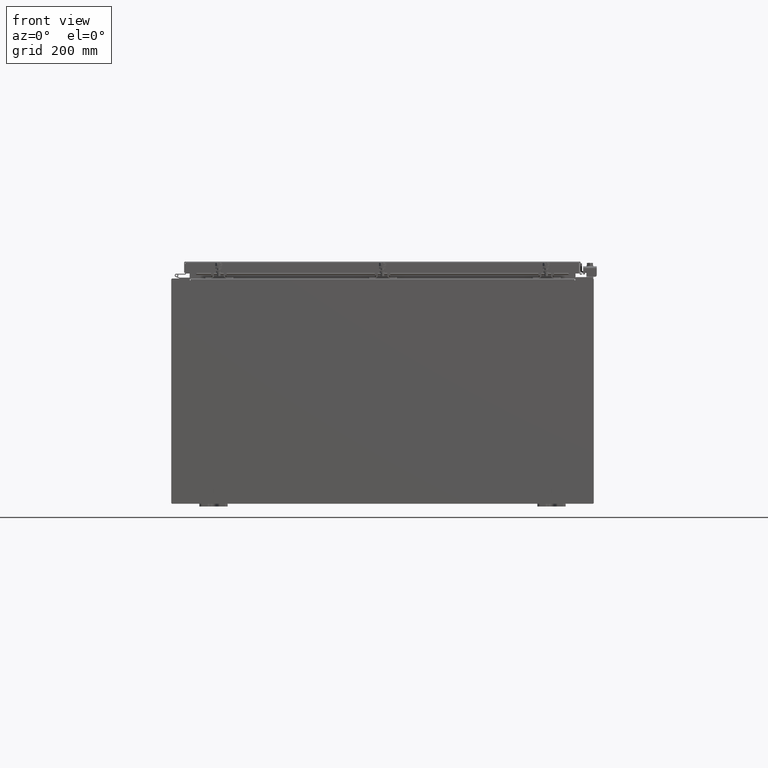
[diagram: clean part render]
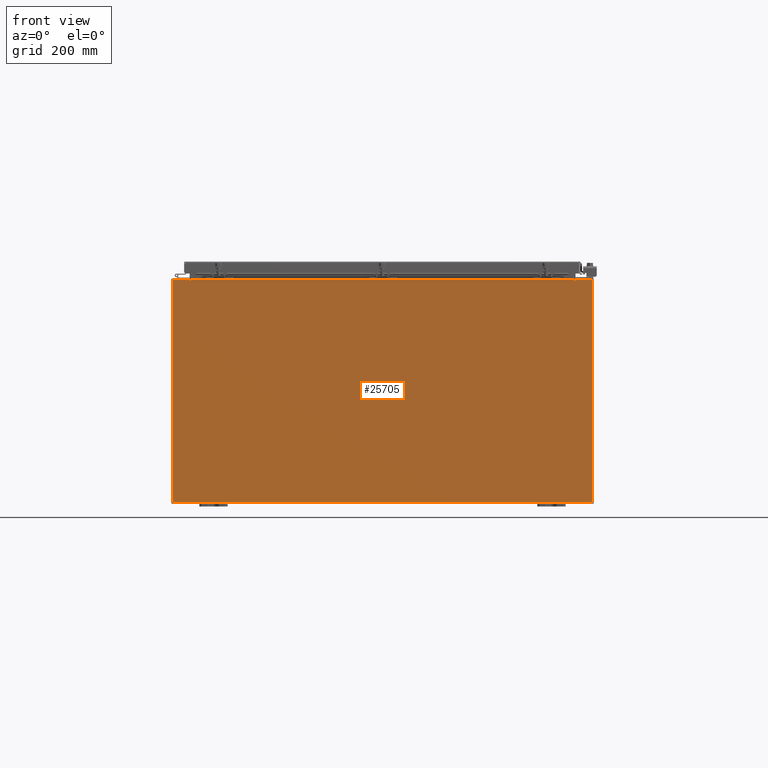
[diagram: same view with one face highlighted and labeled with its STEP entity id]
A machine part, front view. The second image highlights one B-rep face of the part: STEP entity #25705.
In plain terms, the highlighted planar face has unit normal (0, 1, -0).
Its self-contained STEP definition (entity closure, byte-faithful):
#1044 = ORIENTED_EDGE ( 'NONE', *, *, #20439, .F. ) ;
#1153 = LINE ( 'NONE', #43163, #26000 ) ;
#1359 = PLANE ( 'NONE',  #35572 ) ;
#1618 = EDGE_CURVE ( 'NONE', #10319, #11211, #3408, .T. ) ;
#1960 = CARTESIAN_POINT ( 'NONE',  ( -14.92529999999999800, 0.0000000000000000000, 7.925299999999990200 ) ) ;
#3408 = LINE ( 'NONE', #29266, #20342 ) ;
#3864 = CARTESIAN_POINT ( 'NONE',  ( 13.63720000000000400, 0.0000000000000000000, 7.874950000000010800 ) ) ;
#4386 = DIRECTION ( 'NONE',  ( 2.688223102148528000E-016, 1.000000000000000000, -1.677591767810434000E-016 ) ) ;
#4556 = AXIS2_PLACEMENT_3D ( 'NONE', #24652, #4386, #28004 ) ;
#4712 = CARTESIAN_POINT ( 'NONE',  ( 0.0000000000000000000, 0.0000000000000000000, 0.0000000000000000000 ) ) ;
#4773 = ORIENTED_EDGE ( 'NONE', *, *, #42163, .T. ) ;
#4876 = CARTESIAN_POINT ( 'NONE',  ( 13.67455000000000400, 0.0000000000000000000, 7.925300000000009800 ) ) ;
#4912 = LINE ( 'NONE', #42825, #39767 ) ;
#5659 = DIRECTION ( 'NONE',  ( 1.000000000000000000, 2.688223102148527500E-016, 8.326672684688674100E-016 ) ) ;
#5695 = EDGE_CURVE ( 'NONE', #39818, #29211, #40020, .T. ) ;
#5923 = ORIENTED_EDGE ( 'NONE', *, *, #11990, .F. ) ;
#6345 = DIRECTION ( 'NONE',  ( 2.688223102148528000E-016, 1.000000000000000000, -1.677591767810434000E-016 ) ) ;
#7340 = CIRCLE ( 'NONE', #30468, 0.01867499999999949400 ) ;
#8115 = DIRECTION ( 'NONE',  ( -2.688223102148531000E-016, -1.000000000000000000, -1.677591767810432300E-016 ) ) ;
#9051 = CARTESIAN_POINT ( 'NONE',  ( -13.63719999999999800, 0.0000000000000000000, 7.912299999999996600 ) ) ;
#9191 = DIRECTION ( 'NONE',  ( 8.326672684688674100E-016, -1.677591767810434500E-016, 1.000000000000000000 ) ) ;
#10172 = ORIENTED_EDGE ( 'NONE', *, *, #16306, .T. ) ;
#10305 = VERTEX_POINT ( 'NONE', #10382 ) ;
#10319 = VERTEX_POINT ( 'NONE', #34001 ) ;
#10382 = CARTESIAN_POINT ( 'NONE',  ( 14.92530000000000200, 0.0000000000000000000, 7.925300000000009800 ) ) ;
#11211 = VERTEX_POINT ( 'NONE', #12202 ) ;
#11262 = ORIENTED_EDGE ( 'NONE', *, *, #5695, .T. ) ;
#11813 = VERTEX_POINT ( 'NONE', #1960 ) ;
#11990 = EDGE_CURVE ( 'NONE', #12447, #10319, #7340, .T. ) ;
#12059 = EDGE_CURVE ( 'NONE', #11813, #11211, #14229, .T. ) ;
#12202 = CARTESIAN_POINT ( 'NONE',  ( -13.67454999999999500, 0.0000000000000000000, 7.925299999999990200 ) ) ;
#12367 = EDGE_CURVE ( 'NONE', #40821, #27115, #38526, .T. ) ;
#12447 = VERTEX_POINT ( 'NONE', #19533 ) ;
#14229 = LINE ( 'NONE', #43687, #22177 ) ;
#15192 = ORIENTED_EDGE ( 'NONE', *, *, #37243, .F. ) ;
#16306 = EDGE_CURVE ( 'NONE', #10305, #39818, #27543, .T. ) ;
#16329 = CARTESIAN_POINT ( 'NONE',  ( -13.63719999999999600, 0.0000000000000000000, 7.912299999999996600 ) ) ;
#16447 = CARTESIAN_POINT ( 'NONE',  ( 13.63720000000000400, 0.0000000000000000000, 1.092739197465705300E-014 ) ) ;
#16722 = DIRECTION ( 'NONE',  ( 1.000000000000000000, 2.688223102148527500E-016, 7.594533834906285800E-016 ) ) ;
#17777 = LINE ( 'NONE', #16447, #33647 ) ;
#17946 = VERTEX_POINT ( 'NONE', #3864 ) ;
#18433 = DIRECTION ( 'NONE',  ( 1.000000000000000000, 2.688223102148527500E-016, 7.594533834906285800E-016 ) ) ;
#19113 = VECTOR ( 'NONE', #18433, 39.37007874015748100 ) ;
#19533 = CARTESIAN_POINT ( 'NONE',  ( -13.63719999999999600, 0.0000000000000000000, 7.874949999999988600 ) ) ;
#20015 = CARTESIAN_POINT ( 'NONE',  ( -14.92529999999999800, 0.0000000000000000000, -7.925300000000010700 ) ) ;
#20124 = ORIENTED_EDGE ( 'NONE', *, *, #41306, .T. ) ;
#20342 = VECTOR ( 'NONE', #32647, 39.37007874015748100 ) ;
#20439 = EDGE_CURVE ( 'NONE', #40821, #12447, #30106, .T. ) ;
#20552 = VECTOR ( 'NONE', #5659, 39.37007874015748100 ) ;
#21010 = VECTOR ( 'NONE', #43613, 39.37007874015748100 ) ;
#21102 = VECTOR ( 'NONE', #28445, 39.37007874015748100 ) ;
#22177 = VECTOR ( 'NONE', #16722, 39.37007874015748100 ) ;
#22958 = ORIENTED_EDGE ( 'NONE', *, *, #42946, .F. ) ;
#22984 = DIRECTION ( 'NONE',  ( -4.423839507247080400E-014, 1.677591767810317700E-016, -1.000000000000000000 ) ) ;
#23930 = DIRECTION ( 'NONE',  ( -8.326672684688680000E-016, 1.677591767810434300E-016, -1.000000000000000000 ) ) ;
#24652 = CARTESIAN_POINT ( 'NONE',  ( 13.65587500000000200, 0.0000000000000000000, 7.874950000000010800 ) ) ;
#25664 = ORIENTED_EDGE ( 'NONE', *, *, #27086, .F. ) ;
#25705 = ADVANCED_FACE ( 'NONE', ( #27449 ), #1359, .F. ) ;
#26000 = VECTOR ( 'NONE', #22984, 39.37007874015748100 ) ;
#26613 = CARTESIAN_POINT ( 'NONE',  ( -13.65587499999999600, 0.0000000000000000000, 7.874949999999988600 ) ) ;
#26644 = CARTESIAN_POINT ( 'NONE',  ( 13.63720000000000400, 0.0000000000000000000, 7.912300000000011700 ) ) ;
#27024 = LINE ( 'NONE', #38660, #19113 ) ;
#27086 = EDGE_CURVE ( 'NONE', #17946, #27115, #17777, .T. ) ;
#27115 = VERTEX_POINT ( 'NONE', #26644 ) ;
#27182 = CIRCLE ( 'NONE', #4556, 0.01867499999999949400 ) ;
#27449 = FACE_OUTER_BOUND ( 'NONE', #41150, .T. ) ;
#27543 = LINE ( 'NONE', #30580, #43381 ) ;
#28004 = DIRECTION ( 'NONE',  ( 0.0000000000000000000, 1.677591767810434500E-016, -1.000000000000000000 ) ) ;
#28018 = ORIENTED_EDGE ( 'NONE', *, *, #12367, .T. ) ;
#28445 = DIRECTION ( 'NONE',  ( -8.326672684688674100E-016, 1.677591767810434500E-016, -1.000000000000000000 ) ) ;
#28817 = CARTESIAN_POINT ( 'NONE',  ( 13.67455000000000200, 0.0000000000000000000, 7.874950000000010800 ) ) ;
#29050 = ORIENTED_EDGE ( 'NONE', *, *, #1618, .F. ) ;
#29211 = VERTEX_POINT ( 'NONE', #39355 ) ;
#29266 = CARTESIAN_POINT ( 'NONE',  ( -13.67454999999999500, 0.0000000000000000000, -1.092739197465705300E-014 ) ) ;
#29762 = VERTEX_POINT ( 'NONE', #28817 ) ;
#29997 = DIRECTION ( 'NONE',  ( 0.0000000000000000000, 1.677591767810434500E-016, -1.000000000000000000 ) ) ;
#30106 = LINE ( 'NONE', #41887, #21102 ) ;
#30468 = AXIS2_PLACEMENT_3D ( 'NONE', #26613, #6345, #29997 ) ;
#30580 = CARTESIAN_POINT ( 'NONE',  ( 14.92530000000000200, 0.0000000000000000000, 7.925300000000009800 ) ) ;
#31747 = DIRECTION ( 'NONE',  ( -8.326672684688674100E-016, 1.677591767810434500E-016, -1.000000000000000000 ) ) ;
#32647 = DIRECTION ( 'NONE',  ( 8.326672684688674100E-016, -1.677591767810434500E-016, 1.000000000000000000 ) ) ;
#33647 = VECTOR ( 'NONE', #40038, 39.37007874015748100 ) ;
#34001 = CARTESIAN_POINT ( 'NONE',  ( -13.67454999999999500, 0.0000000000000000000, 7.874949999999988600 ) ) ;
#35572 = AXIS2_PLACEMENT_3D ( 'NONE', #4712, #8115, #31747 ) ;
#37243 = EDGE_CURVE ( 'NONE', #29762, #17946, #27182, .T. ) ;
#38526 = LINE ( 'NONE', #9051, #20552 ) ;
#38533 = VERTEX_POINT ( 'NONE', #4876 ) ;
#38660 = CARTESIAN_POINT ( 'NONE',  ( -14.92529999999999800, 0.0000000000000000000, 7.925299999999990200 ) ) ;
#39355 = CARTESIAN_POINT ( 'NONE',  ( -14.92529999999999800, 0.0000000000000000000, -7.925300000000010700 ) ) ;
#39767 = VECTOR ( 'NONE', #9191, 39.37007874015748100 ) ;
#39818 = VERTEX_POINT ( 'NONE', #41489 ) ;
#40020 = LINE ( 'NONE', #20015, #21010 ) ;
#40038 = DIRECTION ( 'NONE',  ( 8.326672684688674100E-016, -1.677591767810434500E-016, 1.000000000000000000 ) ) ;
#40821 = VERTEX_POINT ( 'NONE', #16329 ) ;
#41150 = EDGE_LOOP ( 'NONE', ( #29050, #5923, #1044, #28018, #25664, #15192, #22958, #4773, #10172, #11262, #20124, #41926 ) ) ;
#41306 = EDGE_CURVE ( 'NONE', #29211, #11813, #4912, .T. ) ;
#41489 = CARTESIAN_POINT ( 'NONE',  ( 14.92530000000000200, 0.0000000000000000000, -7.925299999999988500 ) ) ;
#41887 = CARTESIAN_POINT ( 'NONE',  ( -13.63719999999999600, 0.0000000000000000000, -1.092739197465705300E-014 ) ) ;
#41926 = ORIENTED_EDGE ( 'NONE', *, *, #12059, .T. ) ;
#42163 = EDGE_CURVE ( 'NONE', #38533, #10305, #27024, .T. ) ;
#42825 = CARTESIAN_POINT ( 'NONE',  ( -14.92529999999999800, 0.0000000000000000000, 7.925299999999990200 ) ) ;
#42946 = EDGE_CURVE ( 'NONE', #38533, #29762, #1153, .T. ) ;
#43163 = CARTESIAN_POINT ( 'NONE',  ( 13.67454999999966100, 0.0000000000000000000, -5.824299922492209000E-013 ) ) ;
#43381 = VECTOR ( 'NONE', #23930, 39.37007874015748100 ) ;
#43613 = DIRECTION ( 'NONE',  ( -1.000000000000000000, -2.688223102148527500E-016, -8.326672684688674100E-016 ) ) ;
#43687 = CARTESIAN_POINT ( 'NONE',  ( -14.92529999999999800, 0.0000000000000000000, 7.925299999999990200 ) ) ;